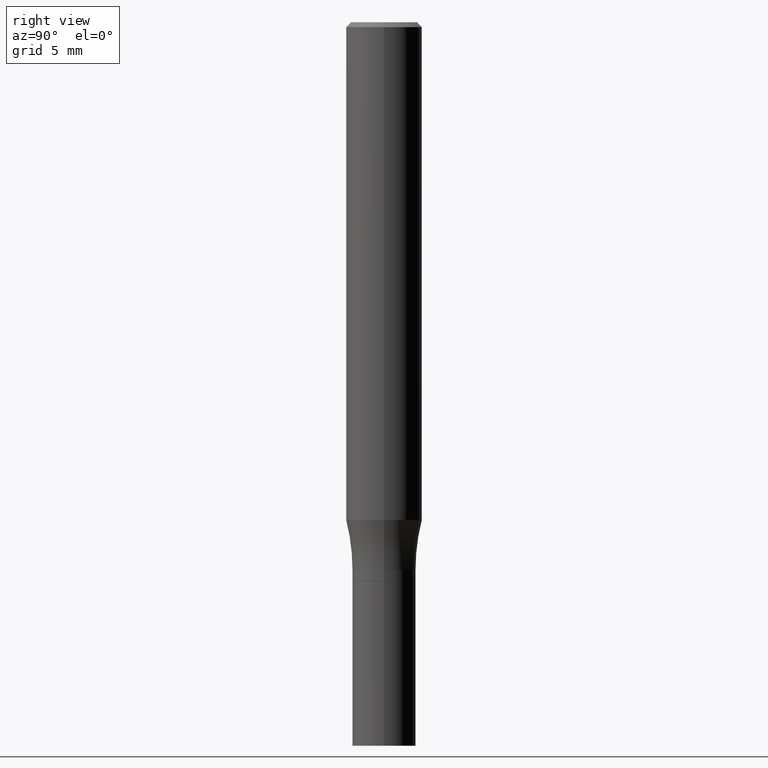
[diagram: clean part render]
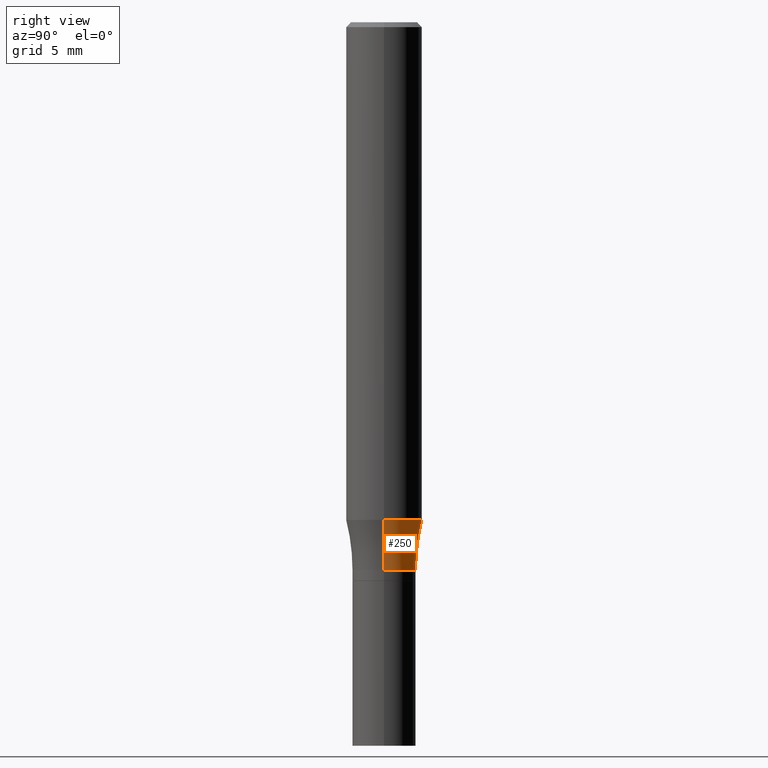
[diagram: same view with one face highlighted and labeled with its STEP entity id]
A machine part, right view. The second image highlights one B-rep face of the part: STEP entity #250.
In plain terms, the highlighted toroidal blend (fillet) surface has major radius 18.3756 mm and minor (blend) radius 15.875 mm.
Its self-contained STEP definition (entity closure, byte-faithful):
#10 = CARTESIAN_POINT ( 'NONE',  ( -0.1180999999999999966, -4.550343100563697850E-15, -1.543612452267068891 ) ) ;
#33 = CARTESIAN_POINT ( 'NONE',  ( 4.155096048589165620E-29, -5.932375942828387719E-15, -1.699099999999999833 ) ) ;
#35 = TOROIDAL_SURFACE ( 'NONE', #201, 0.7234499999999995934, 0.6250000000000000000 ) ;
#58 = VERTEX_POINT ( 'NONE', #249 ) ;
#82 = CARTESIAN_POINT ( 'NONE',  ( 4.155096048589165620E-29, -5.932375942828387719E-15, -1.699099999999999833 ) ) ;
#110 = CARTESIAN_POINT ( 'NONE',  ( 3.774856100858060618E-29, -5.389494071496376836E-15, -1.543612452267068891 ) ) ;
#114 = DIRECTION ( 'NONE',  ( 1.000000000000000000, -6.982962677686265133E-15, 0.000000000000000000 ) ) ;
#116 = DIRECTION ( 'NONE',  ( -1.000000000000000000, 7.105427357601001859E-15, 0.000000000000000000 ) ) ;
#131 = EDGE_CURVE ( 'NONE', #58, #301, #310, .T. ) ;
#136 = CIRCLE ( 'NONE', #468, 0.6250000000000000000 ) ;
#141 = DIRECTION ( 'NONE',  ( 1.000000000000000000, -6.982962677686271444E-15, 0.000000000000000000 ) ) ;
#157 = AXIS2_PLACEMENT_3D ( 'NONE', #110, #221, #369 ) ;
#159 = ORIENTED_EDGE ( 'NONE', *, *, #176, .T. ) ;
#176 = EDGE_CURVE ( 'NONE', #58, #450, #136, .T. ) ;
#201 = AXIS2_PLACEMENT_3D ( 'NONE', #33, #430, #321 ) ;
#219 = EDGE_CURVE ( 'NONE', #450, #304, #265, .T. ) ;
#221 = DIRECTION ( 'NONE',  ( -2.445468806185136597E-29, 3.491481338843145583E-15, 1.000000000000000000 ) ) ;
#228 = CARTESIAN_POINT ( 'NONE',  ( 0.09844999999999963503, -6.619848618446598701E-15, -1.699099999999999833 ) ) ;
#237 = EDGE_CURVE ( 'NONE', #301, #304, #287, .T. ) ;
#249 = CARTESIAN_POINT ( 'NONE',  ( 0.1180999999999999966, -6.214181963731125887E-15, -1.543612452267068891 ) ) ;
#250 = ADVANCED_FACE ( 'NONE', ( #437 ), #35, .F. ) ;
#259 = AXIS2_PLACEMENT_3D ( 'NONE', #82, #377, #141 ) ;
#265 = CIRCLE ( 'NONE', #259, 0.09844999999999963503 ) ;
#287 = CIRCLE ( 'NONE', #326, 0.6250000000000000000 ) ;
#301 = VERTEX_POINT ( 'NONE', #10 ) ;
#304 = VERTEX_POINT ( 'NONE', #434 ) ;
#310 = CIRCLE ( 'NONE', #157, 0.1181000000000000383 ) ;
#319 = CARTESIAN_POINT ( 'NONE',  ( 0.7234499999999995934, -1.098420029200051540E-14, -1.699099999999999833 ) ) ;
#321 = DIRECTION ( 'NONE',  ( 1.000000000000000000, -6.982962677686266711E-15, 4.883557194083112901E-29 ) ) ;
#326 = AXIS2_PLACEMENT_3D ( 'NONE', #403, #328, #116 ) ;
#328 = DIRECTION ( 'NONE',  ( 7.105427357601001859E-15, 1.000000000000000000, -3.491481338843145583E-15 ) ) ;
#333 = DIRECTION ( 'NONE',  ( -6.982962677686266711E-15, -1.000000000000000000, 3.491481338843145583E-15 ) ) ;
#369 = DIRECTION ( 'NONE',  ( 1.000000000000000000, -6.982962677686270655E-15, 0.000000000000000000 ) ) ;
#377 = DIRECTION ( 'NONE',  ( -2.445468806185136597E-29, 3.491481338843145583E-15, 1.000000000000000000 ) ) ;
#387 = ORIENTED_EDGE ( 'NONE', *, *, #131, .F. ) ;
#403 = CARTESIAN_POINT ( 'NONE',  ( -0.7234499999999995934, -7.919545209719458135E-16, -1.699099999999999833 ) ) ;
#420 = ORIENTED_EDGE ( 'NONE', *, *, #237, .F. ) ;
#429 = ORIENTED_EDGE ( 'NONE', *, *, #219, .T. ) ;
#430 = DIRECTION ( 'NONE',  ( -2.445468806185136597E-29, 3.491481338843145583E-15, 1.000000000000000000 ) ) ;
#434 = CARTESIAN_POINT ( 'NONE',  ( -0.09844999999999963503, -4.891594860018134518E-15, -1.699099999999999833 ) ) ;
#437 = FACE_OUTER_BOUND ( 'NONE', #457, .T. ) ;
#450 = VERTEX_POINT ( 'NONE', #228 ) ;
#457 = EDGE_LOOP ( 'NONE', ( #420, #387, #159, #429 ) ) ;
#468 = AXIS2_PLACEMENT_3D ( 'NONE', #319, #333, #114 ) ;